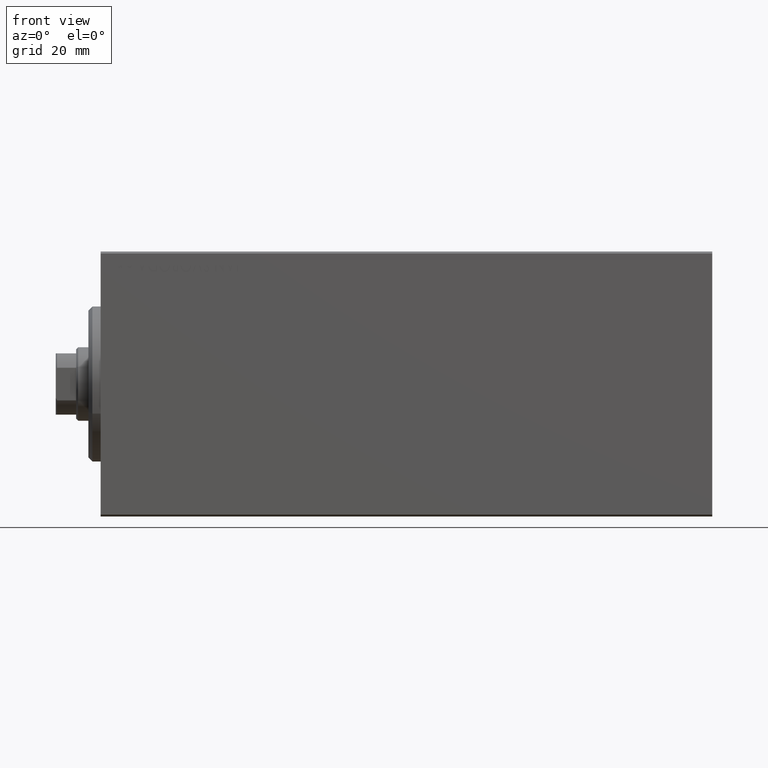
[diagram: clean part render]
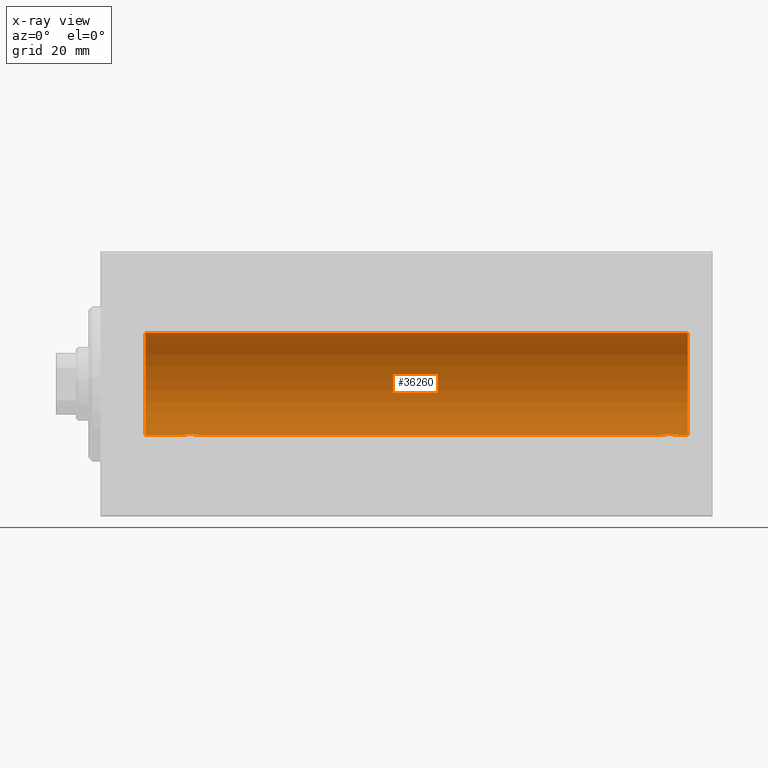
[diagram: x-ray — body ghosted, one internal face saturated and labeled with its STEP entity id]
A machine part, front view, then the same camera in x-ray: the body is ghosted and one INTERNAL B-rep face — a face not visible from any outside direction — is saturated and labeled: STEP entity #36260.
In plain terms, the highlighted cylindrical surface (partial cylindrical patch) has radius 12.5 mm, axis along (-1, -0, -0).
Its self-contained STEP definition (entity closure, byte-faithful):
#246 = CARTESIAN_POINT ( 'NONE',  ( 20.06395648222636652, 0.5184196815546032733, -12.48990118705761532 ) ) ;
#1783 = LINE ( 'NONE', #19350, #43312 ) ;
#2150 = LINE ( 'NONE', #2366, #23830 ) ;
#2366 = CARTESIAN_POINT ( 'NONE',  ( 144.0000000000000000, 1.530808498934191521E-15, -12.50000000000000000 ) ) ;
#2707 = CARTESIAN_POINT ( 'NONE',  ( 23.32102833500698225, 1.507394620545640773, -12.40913174964213184 ) ) ;
#2856 = B_SPLINE_CURVE_WITH_KNOTS ( 'NONE', 3,
 ( #42598, #5225, #22133, #25890, #23377, #35911, #19235, #12335, #15884, #26110, #15221, #39705, #25454, #39043, #12122, #5444, #4789, #8559, #42823, #15663, #39483, #28787, #25676, #36135, #8780, #29231, #32790, #8343, #15015, #8998 ),
 .UNSPECIFIED., .F., .F.,
 ( 4, 2, 2, 2, 2, 2, 2, 2, 2, 2, 2, 2, 2, 2, 4 ),
 ( 2.902486787407742216E-18, 0.0003914362731607407692, 0.0007828725463214786110, 0.001174308819482216236, 0.001565745092642954186, 0.002348617638964488417, 0.003131490185286022430, 0.003522926458446789220, 0.003914362731607556010, 0.004305799004768322800, 0.004697235277929090458, 0.005088671551089857248, 0.005480107824250624038, 0.005871544097411390828, 0.006262980370572158485 ),
 .UNSPECIFIED. ) ;
#2883 = ORIENTED_EDGE ( 'NONE', *, *, #28762, .F. ) ;
#2925 = CARTESIAN_POINT ( 'NONE',  ( 23.21980790594580313, 1.590288205413975309, -12.39864157855465088 ) ) ;
#3140 = CARTESIAN_POINT ( 'NONE',  ( 20.26446744561862801, 1.002494658017155871, -12.46021263690096958 ) ) ;
#3577 = CARTESIAN_POINT ( 'NONE',  ( 23.79742491916155700, 0.8868029758979399935, -12.46909283808506430 ) ) ;
#3998 = EDGE_CURVE ( 'NONE', #10048, #15679, #27898, .T. ) ;
#4783 = VECTOR ( 'NONE', #19311, 1000.000000000000000 ) ;
#4789 = CARTESIAN_POINT ( 'NONE',  ( 140.1441523377029057, 1.897967064543077287, -12.35517291625592229 ) ) ;
#5225 = CARTESIAN_POINT ( 'NONE',  ( 137.4999999999999716, 0.1323736289504179875, -12.50000000000000000 ) ) ;
#5268 = EDGE_CURVE ( 'NONE', #24648, #13328, #40972, .T. ) ;
#5444 = CARTESIAN_POINT ( 'NONE',  ( 140.0193735085155140, 1.935814255713552923, -12.34922241902462936 ) ) ;
#6268 = CARTESIAN_POINT ( 'NONE',  ( 21.73788193668374902, 1.999901172190678533, -12.33897869807161385 ) ) ;
#6694 = CARTESIAN_POINT ( 'NONE',  ( 22.26269462454597914, 1.986986967296540119, -12.34109209020652465 ) ) ;
#6917 = CARTESIAN_POINT ( 'NONE',  ( 23.00335814299181436, 1.734998657226765939, -12.37922086519035325 ) ) ;
#7659 = CARTESIAN_POINT ( 'NONE',  ( 144.0000000000000000, 1.530808498934191521E-15, -12.50000000000000000 ) ) ;
#8343 = CARTESIAN_POINT ( 'NONE',  ( 141.4869038476625178, 0.2633501011236181744, -12.49788564268283864 ) ) ;
#8559 = CARTESIAN_POINT ( 'NONE',  ( 140.3865631353301353, 1.797558627508986318, -12.37018026341339016 ) ) ;
#8780 = CARTESIAN_POINT ( 'NONE',  ( 141.2974249191615002, 0.8868029758979300015, -12.46909283808506075 ) ) ;
#8998 = CARTESIAN_POINT ( 'NONE',  ( 141.5000000000000000, 1.530808426269529245E-15, -12.50000000000000000 ) ) ;
#9255 = AXIS2_PLACEMENT_3D ( 'NONE', #16757, #19247, #30111 ) ;
#9285 = AXIS2_PLACEMENT_3D ( 'NONE', #29391, #15827, #39427 ) ;
#9735 = CARTESIAN_POINT ( 'NONE',  ( 144.0000000000000000, 1.530808498934191521E-15, -12.50000000000000000 ) ) ;
#9824 = CARTESIAN_POINT ( 'NONE',  ( 24.00000000000000000, 1.530808426277417854E-15, -12.50000000000000000 ) ) ;
#10048 = VERTEX_POINT ( 'NONE', #18893 ) ;
#10163 = AXIS2_PLACEMENT_3D ( 'NONE', #29668, #12771, #26322 ) ;
#11589 = EDGE_LOOP ( 'NONE', ( #27045, #26725, #36701, #20598, #30948, #22793, #2883, #15717 ) ) ;
#12122 = CARTESIAN_POINT ( 'NONE',  ( 139.7626946245459862, 1.986986967296519468, -12.34109209020652997 ) ) ;
#12335 = CARTESIAN_POINT ( 'NONE',  ( 137.9096331999059544, 1.219754986802259689, -12.44082361696003680 ) ) ;
#12569 = VERTEX_POINT ( 'NONE', #20645 ) ;
#12618 = EDGE_CURVE ( 'NONE', #24648, #12569, #2150, .T. ) ;
#12771 = DIRECTION ( 'NONE',  ( -1.000000000000000000, 0.000000000000000000, 0.000000000000000000 ) ) ;
#12787 = FACE_OUTER_BOUND ( 'NONE', #11589, .T. ) ;
#12843 = CIRCLE ( 'NONE', #9285, 12.50000000000000000 ) ;
#13177 = CARTESIAN_POINT ( 'NONE',  ( 24.00000000000000000, 1.530808426277417854E-15, -12.50000000000000000 ) ) ;
#13328 = VERTEX_POINT ( 'NONE', #13177 ) ;
#13376 = CARTESIAN_POINT ( 'NONE',  ( 21.47436412829510033, 1.947190906025044077, -12.34781876294798053 ) ) ;
#15015 = CARTESIAN_POINT ( 'NONE',  ( 141.4999999999999432, 0.1306394121199381253, -12.49999999999999822 ) ) ;
#15221 = CARTESIAN_POINT ( 'NONE',  ( 138.4931687955249799, 1.747608771958124807, -12.37764291807175709 ) ) ;
#15663 = CARTESIAN_POINT ( 'NONE',  ( 140.7198079059457712, 1.590288205413975087, -12.39864157855464910 ) ) ;
#15679 = VERTEX_POINT ( 'NONE', #7659 ) ;
#15717 = ORIENTED_EDGE ( 'NONE', *, *, #31462, .T. ) ;
#15827 = DIRECTION ( 'NONE',  ( -1.000000000000000000, 0.000000000000000000, 0.000000000000000000 ) ) ;
#15884 = CARTESIAN_POINT ( 'NONE',  ( 137.9939836632721324, 1.322451657002064351, -12.43019346654085666 ) ) ;
#15897 = CYLINDRICAL_SURFACE ( 'NONE', #9255, 12.50000000000000000 ) ;
#16273 = CARTESIAN_POINT ( 'NONE',  ( 23.58991408680628155, 1.220297236145721609, -12.44076681548080288 ) ) ;
#16488 = CARTESIAN_POINT ( 'NONE',  ( 23.89773031393658087, 0.6448065707253023415, -12.48394649977302073 ) ) ;
#16757 = CARTESIAN_POINT ( 'NONE',  ( 144.0000000000000000, 0.000000000000000000, 0.000000000000000000 ) ) ;
#17137 = CARTESIAN_POINT ( 'NONE',  ( 23.73470742397611843, 1.003863686549172352, -12.46009879577771606 ) ) ;
#18526 = CARTESIAN_POINT ( 'NONE',  ( 141.5000000000000000, 1.530808426269529245E-15, -12.50000000000000000 ) ) ;
#18893 = CARTESIAN_POINT ( 'NONE',  ( 144.0000000000000000, 0.000000000000000000, 12.50000000000000000 ) ) ;
#19235 = CARTESIAN_POINT ( 'NONE',  ( 137.7644674456186351, 1.002494658017137219, -12.46021263690097136 ) ) ;
#19247 = DIRECTION ( 'NONE',  ( -1.000000000000000000, -0.000000000000000000, -0.000000000000000000 ) ) ;
#19311 = DIRECTION ( 'NONE',  ( -1.000000000000000000, -0.000000000000000000, -0.000000000000000000 ) ) ;
#19350 = CARTESIAN_POINT ( 'NONE',  ( 144.0000000000000000, 1.530808498934191521E-15, -12.50000000000000000 ) ) ;
#19613 = CARTESIAN_POINT ( 'NONE',  ( 22.12992629360264729, 2.000049200055402210, -12.33895470450623044 ) ) ;
#19834 = CARTESIAN_POINT ( 'NONE',  ( 22.51937350851555308, 1.935814255713574905, -12.34922241902463114 ) ) ;
#20257 = CARTESIAN_POINT ( 'NONE',  ( 24.00000000000000711, 0.1306394121199392910, -12.50000000000000533 ) ) ;
#20483 = CARTESIAN_POINT ( 'NONE',  ( 20.10252270298193622, 0.6455696738844897142, -12.48390768591463207 ) ) ;
#20598 = ORIENTED_EDGE ( 'NONE', *, *, #42931, .T. ) ;
#20645 = CARTESIAN_POINT ( 'NONE',  ( 11.00000000000001066, 1.530808498934191521E-15, -12.50000000000000000 ) ) ;
#21141 = CARTESIAN_POINT ( 'NONE',  ( 137.4999999999999716, -1.407690443847321693E-14, -12.50000000000000000 ) ) ;
#21308 = VERTEX_POINT ( 'NONE', #21141 ) ;
#22133 = CARTESIAN_POINT ( 'NONE',  ( 137.5130120851634672, 0.2624928479599758502, -12.49789934882883458 ) ) ;
#22793 = ORIENTED_EDGE ( 'NONE', *, *, #5268, .T. ) ;
#23165 = CARTESIAN_POINT ( 'NONE',  ( 20.49398366327207910, 1.322451657002076120, -12.43019346654084956 ) ) ;
#23377 = CARTESIAN_POINT ( 'NONE',  ( 137.6025227029819291, 0.6455696738844706184, -12.48390768591463207 ) ) ;
#23830 = VECTOR ( 'NONE', #36607, 1000.000000000000000 ) ;
#24648 = VERTEX_POINT ( 'NONE', #35800 ) ;
#25033 = EDGE_CURVE ( 'NONE', #10048, #36371, #34550, .T. ) ;
#25181 = CARTESIAN_POINT ( 'NONE',  ( 144.0000000000000000, 0.000000000000000000, 12.50000000000000000 ) ) ;
#25454 = CARTESIAN_POINT ( 'NONE',  ( 139.2378819366837774, 1.999901172190657217, -12.33897869807161385 ) ) ;
#25676 = CARTESIAN_POINT ( 'NONE',  ( 141.0899140868062887, 1.220297236145716502, -12.44076681548080643 ) ) ;
#25890 = CARTESIAN_POINT ( 'NONE',  ( 137.5639564822263878, 0.5184196815545896175, -12.48990118705761709 ) ) ;
#26110 = CARTESIAN_POINT ( 'NONE',  ( 138.2703350612684972, 1.598680238462354186, -12.39873273758732175 ) ) ;
#26322 = DIRECTION ( 'NONE',  ( 0.000000000000000000, 0.000000000000000000, 1.000000000000000000 ) ) ;
#26715 = CARTESIAN_POINT ( 'NONE',  ( 20.40963319990594016, 1.219754986802279451, -12.44082361696003503 ) ) ;
#26725 = ORIENTED_EDGE ( 'NONE', *, *, #3998, .F. ) ;
#27045 = ORIENTED_EDGE ( 'NONE', *, *, #35452, .F. ) ;
#27898 = CIRCLE ( 'NONE', #10163, 12.50000000000000000 ) ;
#28762 = EDGE_CURVE ( 'NONE', #21308, #13328, #29307, .T. ) ;
#28787 = CARTESIAN_POINT ( 'NONE',  ( 141.0073355036432190, 1.321095788880527255, -12.43034574091278444 ) ) ;
#29231 = CARTESIAN_POINT ( 'NONE',  ( 141.3977303139365915, 0.6448065707252957912, -12.48394649977302251 ) ) ;
#29307 = LINE ( 'NONE', #9735, #4783 ) ;
#29391 = CARTESIAN_POINT ( 'NONE',  ( 11.00000000000001066, 0.000000000000000000, 0.000000000000000000 ) ) ;
#29668 = CARTESIAN_POINT ( 'NONE',  ( 144.0000000000000000, 0.000000000000000000, 0.000000000000000000 ) ) ;
#30056 = CARTESIAN_POINT ( 'NONE',  ( 23.93561774521849728, 0.5201193324741352209, -12.48983485452574982 ) ) ;
#30111 = DIRECTION ( 'NONE',  ( 0.000000000000000000, 0.000000000000000000, 1.000000000000000000 ) ) ;
#30239 = VECTOR ( 'NONE', #35000, 1000.000000000000000 ) ;
#30276 = CARTESIAN_POINT ( 'NONE',  ( 20.77033506126850426, 1.598680238462369951, -12.39873273758732175 ) ) ;
#30948 = ORIENTED_EDGE ( 'NONE', *, *, #12618, .F. ) ;
#31462 = EDGE_CURVE ( 'NONE', #21308, #43978, #2856, .T. ) ;
#32790 = CARTESIAN_POINT ( 'NONE',  ( 141.4356177452185079, 0.5201193324741381074, -12.48983485452574982 ) ) ;
#33405 = CARTESIAN_POINT ( 'NONE',  ( 19.99999999999999645, -3.966047509268588167E-15, -12.50000000000000000 ) ) ;
#34055 = CARTESIAN_POINT ( 'NONE',  ( 23.50733550364322255, 1.321095788880538136, -12.43034574091277911 ) ) ;
#34550 = LINE ( 'NONE', #25181, #30239 ) ;
#35000 = DIRECTION ( 'NONE',  ( -1.000000000000000000, -0.000000000000000000, -0.000000000000000000 ) ) ;
#35452 = EDGE_CURVE ( 'NONE', #15679, #43978, #1783, .T. ) ;
#35800 = CARTESIAN_POINT ( 'NONE',  ( 19.99999999999999645, -3.966047509268588167E-15, -12.50000000000000000 ) ) ;
#35911 = CARTESIAN_POINT ( 'NONE',  ( 137.7030078837138092, 0.8876934327477919995, -12.46903010196599659 ) ) ;
#36135 = CARTESIAN_POINT ( 'NONE',  ( 141.2347074239760616, 1.003863686549169687, -12.46009879577771606 ) ) ;
#36260 = ADVANCED_FACE ( 'NONE', ( #12787 ), #15897, .F. ) ;
#36371 = VERTEX_POINT ( 'NONE', #38130 ) ;
#36524 = CARTESIAN_POINT ( 'NONE',  ( 20.20300788371381273, 0.8876934327478117615, -12.46903010196599304 ) ) ;
#36607 = DIRECTION ( 'NONE',  ( -1.000000000000000000, -0.000000000000000000, -0.000000000000000000 ) ) ;
#36701 = ORIENTED_EDGE ( 'NONE', *, *, #25033, .T. ) ;
#36741 = CARTESIAN_POINT ( 'NONE',  ( 20.99316879552500481, 1.747608771958139906, -12.37764291807175354 ) ) ;
#36957 = CARTESIAN_POINT ( 'NONE',  ( 20.01301208516349206, 0.2624928479599882847, -12.49789934882883458 ) ) ;
#37395 = CARTESIAN_POINT ( 'NONE',  ( 22.64415233770293412, 1.897967064543090165, -12.35517291625592051 ) ) ;
#38130 = CARTESIAN_POINT ( 'NONE',  ( 11.00000000000001066, 0.000000000000000000, 12.50000000000000000 ) ) ;
#39043 = CARTESIAN_POINT ( 'NONE',  ( 139.6299262936026651, 2.000049200055382226, -12.33895470450623399 ) ) ;
#39160 = DIRECTION ( 'NONE',  ( -1.000000000000000000, -0.000000000000000000, -0.000000000000000000 ) ) ;
#39427 = DIRECTION ( 'NONE',  ( 0.000000000000000000, 0.000000000000000000, 1.000000000000000000 ) ) ;
#39483 = CARTESIAN_POINT ( 'NONE',  ( 140.8210283350069574, 1.507394620545628117, -12.40913174964213184 ) ) ;
#39705 = CARTESIAN_POINT ( 'NONE',  ( 138.9743641282951216, 1.947190906025026980, -12.34781876294798586 ) ) ;
#40305 = CARTESIAN_POINT ( 'NONE',  ( 22.88656313533016373, 1.797558627508998086, -12.37018026341338839 ) ) ;
#40972 = B_SPLINE_CURVE_WITH_KNOTS ( 'NONE', 3,
 ( #33405, #43863, #36957, #246, #20483, #36524, #3140, #26715, #23165, #30276, #36741, #13376, #6268, #19613, #6694, #19834, #37395, #40305, #6917, #2925, #2707, #34055, #16273, #17137, #3577, #16488, #30056, #43646, #20257, #9824 ),
 .UNSPECIFIED., .F., .F.,
 ( 4, 2, 2, 2, 2, 2, 2, 2, 2, 2, 2, 2, 2, 2, 4 ),
 ( 3.611342868676865251E-19, 0.0003914362731607586585, 0.0007828725463215168833, 0.001174308819482275217, 0.001565745092643033550, 0.002348617638964549999, 0.003131490185286066666, 0.003522926458446830420, 0.003914362731607594174, 0.004305799004768357495, 0.004697235277929121683, 0.005088671551089885003, 0.005480107824250649191, 0.005871544097411412512, 0.006262980370572176700 ),
 .UNSPECIFIED. ) ;
#42598 = CARTESIAN_POINT ( 'NONE',  ( 137.4999999999999716, -1.407690443847321693E-14, -12.50000000000000000 ) ) ;
#42823 = CARTESIAN_POINT ( 'NONE',  ( 140.5033581429918002, 1.734998657226763052, -12.37922086519036036 ) ) ;
#42931 = EDGE_CURVE ( 'NONE', #36371, #12569, #12843, .T. ) ;
#43312 = VECTOR ( 'NONE', #39160, 1000.000000000000000 ) ;
#43646 = CARTESIAN_POINT ( 'NONE',  ( 23.98690384766256400, 0.2633501011236120681, -12.49788564268284041 ) ) ;
#43863 = CARTESIAN_POINT ( 'NONE',  ( 19.99999999999999645, 0.1323736289504319763, -12.50000000000000000 ) ) ;
#43978 = VERTEX_POINT ( 'NONE', #18526 ) ;